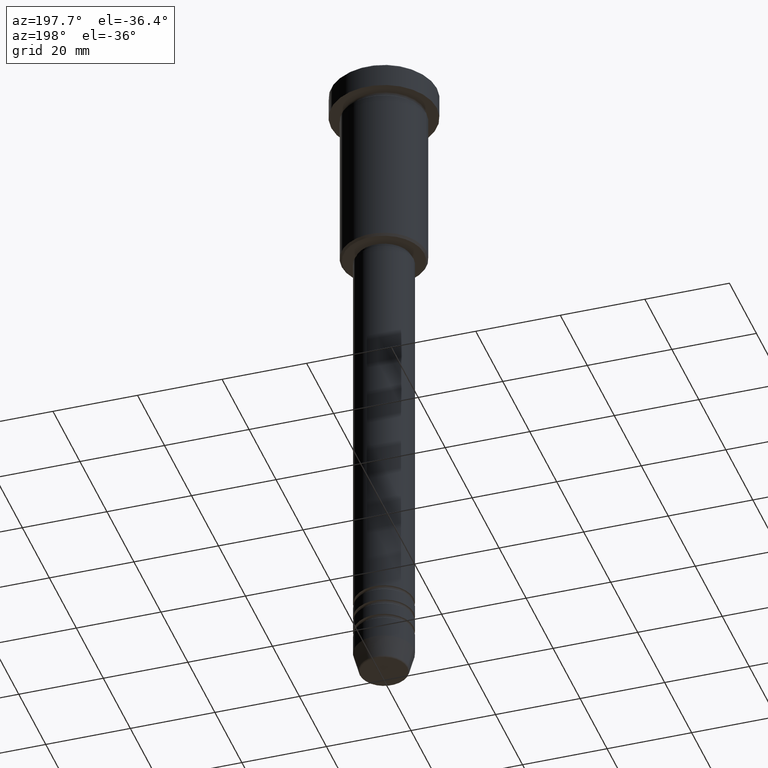
[diagram: clean part render]
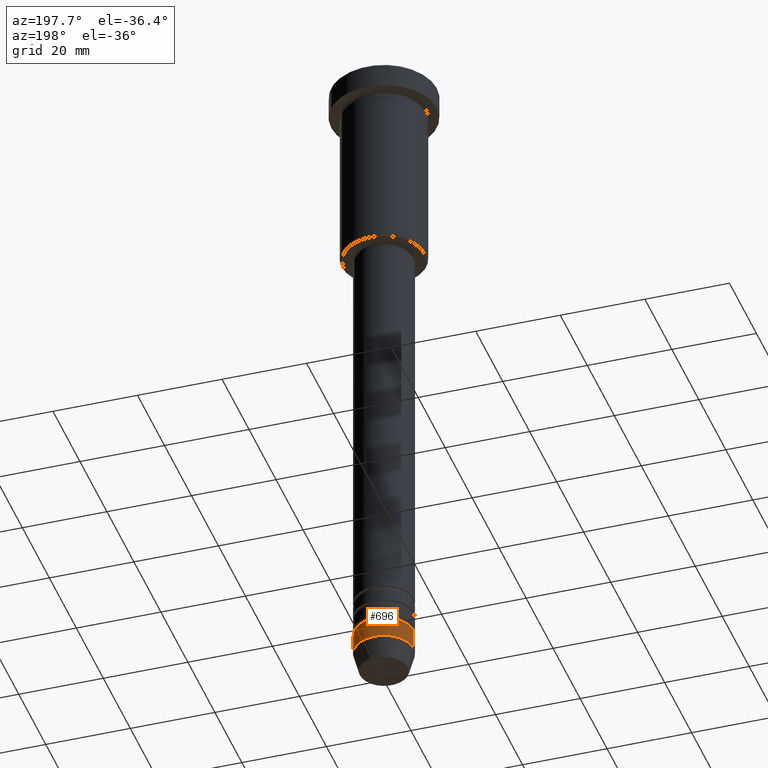
[diagram: same view with one face highlighted and labeled with its STEP entity id]
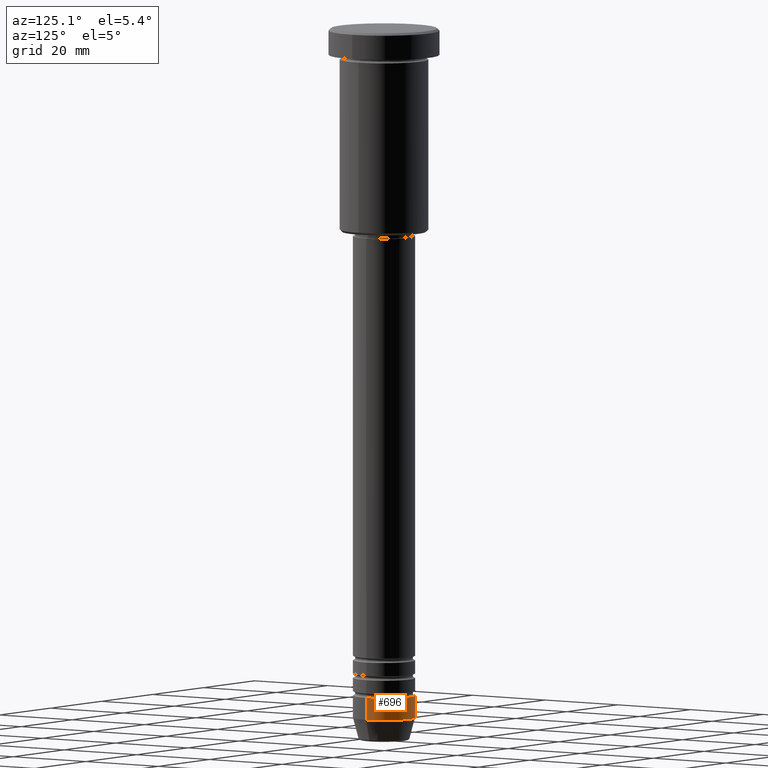
[diagram: same view with one face highlighted and labeled with its STEP entity id]
A machine part, auxiliary view. The second image highlights one B-rep face of the part: STEP entity #696.
A second angle (auxiliary view) of the same face is appended — the face is thin or edge-on in the first view.
In plain terms, the highlighted cylindrical surface (edge-blend (fillet) strip) has radius 7 mm, axis along (-0, -0, 1).
Its self-contained STEP definition (entity closure, byte-faithful):
#27 = CARTESIAN_POINT ( 'NONE',  ( 7.000000000000000000, 0.000000000000000000, 0.000000000000000000 ) ) ;
#61 = CYLINDRICAL_SURFACE ( 'NONE', #246, 7.000000000000000000 ) ;
#73 = CIRCLE ( 'NONE', #228, 7.000000000000000000 ) ;
#105 = CARTESIAN_POINT ( 'NONE',  ( -7.000000000000000000, 8.572527594031473190E-16, -156.0000000000000284 ) ) ;
#118 = CARTESIAN_POINT ( 'NONE',  ( -7.000000000000000000, 8.572527594031473190E-16, -151.0000000000000284 ) ) ;
#120 = VERTEX_POINT ( 'NONE', #105 ) ;
#131 = DIRECTION ( 'NONE',  ( 1.000000000000000000, 0.000000000000000000, 0.000000000000000000 ) ) ;
#165 = EDGE_CURVE ( 'NONE', #1001, #172, #1093, .T. ) ;
#172 = VERTEX_POINT ( 'NONE', #195 ) ;
#195 = CARTESIAN_POINT ( 'NONE',  ( 7.000000000000000000, 0.000000000000000000, -151.0000000000000284 ) ) ;
#214 = ORIENTED_EDGE ( 'NONE', *, *, #165, .F. ) ;
#228 = AXIS2_PLACEMENT_3D ( 'NONE', #1094, #411, #131 ) ;
#246 = AXIS2_PLACEMENT_3D ( 'NONE', #1154, #420, #328 ) ;
#260 = AXIS2_PLACEMENT_3D ( 'NONE', #268, #539, #901 ) ;
#268 = CARTESIAN_POINT ( 'NONE',  ( 0.000000000000000000, 0.000000000000000000, -151.0000000000000284 ) ) ;
#328 = DIRECTION ( 'NONE',  ( 1.000000000000000000, 0.000000000000000000, 0.000000000000000000 ) ) ;
#346 = ORIENTED_EDGE ( 'NONE', *, *, #1169, .T. ) ;
#372 = VECTOR ( 'NONE', #1137, 1000.000000000000000 ) ;
#401 = EDGE_CURVE ( 'NONE', #172, #1150, #775, .T. ) ;
#411 = DIRECTION ( 'NONE',  ( -0.000000000000000000, -0.000000000000000000, 1.000000000000000000 ) ) ;
#420 = DIRECTION ( 'NONE',  ( -0.000000000000000000, -0.000000000000000000, 1.000000000000000000 ) ) ;
#458 = DIRECTION ( 'NONE',  ( -0.000000000000000000, -0.000000000000000000, 1.000000000000000000 ) ) ;
#539 = DIRECTION ( 'NONE',  ( -0.000000000000000000, -0.000000000000000000, 1.000000000000000000 ) ) ;
#603 = ORIENTED_EDGE ( 'NONE', *, *, #401, .F. ) ;
#680 = LINE ( 'NONE', #1127, #372 ) ;
#696 = ADVANCED_FACE ( 'NONE', ( #786 ), #61, .T. ) ;
#774 = VECTOR ( 'NONE', #458, 1000.000000000000000 ) ;
#775 = CIRCLE ( 'NONE', #260, 7.000000000000000000 ) ;
#786 = FACE_OUTER_BOUND ( 'NONE', #1078, .T. ) ;
#901 = DIRECTION ( 'NONE',  ( 1.000000000000000000, 0.000000000000000000, 0.000000000000000000 ) ) ;
#1001 = VERTEX_POINT ( 'NONE', #1054 ) ;
#1054 = CARTESIAN_POINT ( 'NONE',  ( 7.000000000000000000, 0.000000000000000000, -156.0000000000000284 ) ) ;
#1078 = EDGE_LOOP ( 'NONE', ( #346, #1143, #603, #214 ) ) ;
#1093 = LINE ( 'NONE', #27, #774 ) ;
#1094 = CARTESIAN_POINT ( 'NONE',  ( 0.000000000000000000, 0.000000000000000000, -156.0000000000000284 ) ) ;
#1127 = CARTESIAN_POINT ( 'NONE',  ( -7.000000000000000000, 8.572527594031473190E-16, 0.000000000000000000 ) ) ;
#1137 = DIRECTION ( 'NONE',  ( -0.000000000000000000, -0.000000000000000000, 1.000000000000000000 ) ) ;
#1143 = ORIENTED_EDGE ( 'NONE', *, *, #1176, .T. ) ;
#1150 = VERTEX_POINT ( 'NONE', #118 ) ;
#1154 = CARTESIAN_POINT ( 'NONE',  ( 0.000000000000000000, 0.000000000000000000, 0.000000000000000000 ) ) ;
#1169 = EDGE_CURVE ( 'NONE', #1001, #120, #73, .T. ) ;
#1176 = EDGE_CURVE ( 'NONE', #120, #1150, #680, .T. ) ;